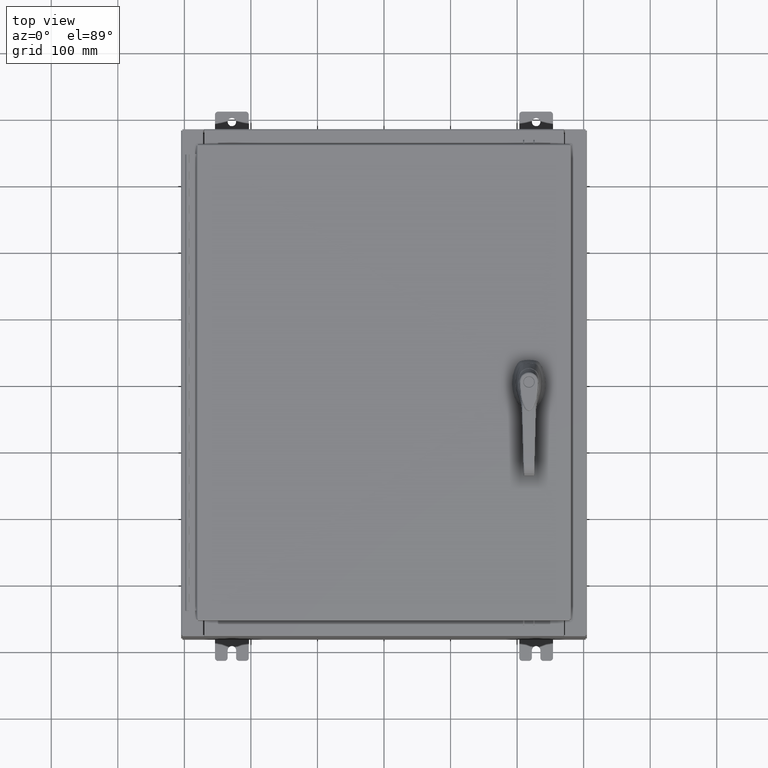
[diagram: clean part render]
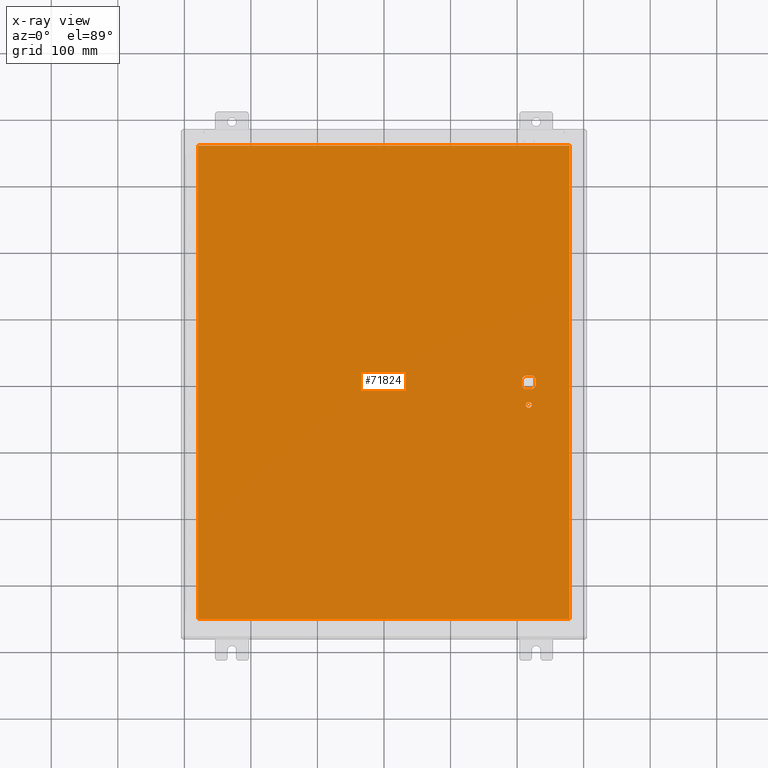
[diagram: x-ray — body ghosted, one internal face saturated and labeled with its STEP entity id]
A machine part, top view, then the same camera in x-ray: the body is ghosted and one INTERNAL B-rep face — a face not visible from any outside direction — is saturated and labeled: STEP entity #71824.
In plain terms, the highlighted planar face has unit normal (0, 0, -1).
Its self-contained STEP definition (entity closure, byte-faithful):
#723 = VERTEX_POINT ( 'NONE', #100959 ) ;
#2587 = ORIENTED_EDGE ( 'NONE', *, *, #101050, .T. ) ;
#4216 = CARTESIAN_POINT ( 'NONE',  ( 0.0000000000000000000, -0.4029999999999252000, -0.07470000000000003000 ) ) ;
#4519 = LINE ( 'NONE', #38923, #10129 ) ;
#5924 = EDGE_CURVE ( 'NONE', #16228, #10799, #52598, .T. ) ;
#6457 = DIRECTION ( 'NONE',  ( -0.0000000000000000000, -0.0000000000000000000, 1.000000000000000000 ) ) ;
#7969 = CARTESIAN_POINT ( 'NONE',  ( 10.99030000000000000, -14.00629999999999800, -0.07470000000000000300 ) ) ;
#10129 = VECTOR ( 'NONE', #102152, 39.37007874015748100 ) ;
#10799 = VERTEX_POINT ( 'NONE', #38162 ) ;
#11919 = EDGE_CURVE ( 'NONE', #31676, #81058, #90666, .T. ) ;
#12969 = CARTESIAN_POINT ( 'NONE',  ( -10.99030000000000000, 14.00630000000000100, -0.07470000000000019700 ) ) ;
#13667 = LINE ( 'NONE', #65202, #61791 ) ;
#16228 = VERTEX_POINT ( 'NONE', #105351 ) ;
#17698 = DIRECTION ( 'NONE',  ( -0.0000000000000000000, -0.0000000000000000000, 1.000000000000000000 ) ) ;
#18111 = LINE ( 'NONE', #45543, #111513 ) ;
#19831 = ORIENTED_EDGE ( 'NONE', *, *, #54070, .F. ) ;
#22027 = VECTOR ( 'NONE', #86319, 39.37007874015748100 ) ;
#22098 = ORIENTED_EDGE ( 'NONE', *, *, #5924, .F. ) ;
#22574 = ORIENTED_EDGE ( 'NONE', *, *, #36557, .F. ) ;
#23165 = CARTESIAN_POINT ( 'NONE',  ( 8.980999999999925300, 0.2002273707563080300, -0.07470000000000003000 ) ) ;
#23982 = VERTEX_POINT ( 'NONE', #53051 ) ;
#26213 = AXIS2_PLACEMENT_3D ( 'NONE', #93775, #39615, #102842 ) ;
#26748 = VECTOR ( 'NONE', #103163, 39.37007874015748100 ) ;
#26751 = ORIENTED_EDGE ( 'NONE', *, *, #45529, .T. ) ;
#29593 = LINE ( 'NONE', #12969, #26748 ) ;
#31578 = EDGE_CURVE ( 'NONE', #66918, #51795, #67882, .T. ) ;
#31676 = VERTEX_POINT ( 'NONE', #91230 ) ;
#32430 = VERTEX_POINT ( 'NONE', #68137 ) ;
#32729 = PLANE ( 'NONE',  #100326 ) ;
#32805 = CIRCLE ( 'NONE', #43745, 0.4499999999999156900 ) ;
#36319 = AXIS2_PLACEMENT_3D ( 'NONE', #60678, #6457, #69753 ) ;
#36557 = EDGE_CURVE ( 'NONE', #101112, #81058, #13667, .T. ) ;
#37115 = DIRECTION ( 'NONE',  ( 0.0000000000000000000, 1.000000000000000000, 0.0000000000000000000 ) ) ;
#37184 = CIRCLE ( 'NONE', #26213, 0.4499999999999156900 ) ;
#38162 = CARTESIAN_POINT ( 'NONE',  ( -10.99030000000000000, 14.00629999999999800, -0.07470000000000000300 ) ) ;
#38923 = CARTESIAN_POINT ( 'NONE',  ( 0.0000000000000000000, 0.4029999999999252000, -0.07470000000000003000 ) ) ;
#39035 = VERTEX_POINT ( 'NONE', #51809 ) ;
#39615 = DIRECTION ( 'NONE',  ( -0.0000000000000000000, -0.0000000000000000000, 1.000000000000000000 ) ) ;
#40770 = ORIENTED_EDGE ( 'NONE', *, *, #11919, .T. ) ;
#41645 = CARTESIAN_POINT ( 'NONE',  ( 8.175000000000073500, 0.0000000000000000000, -0.07470000000000003000 ) ) ;
#41820 = DIRECTION ( 'NONE',  ( -1.000000000000000000, 0.0000000000000000000, -0.0000000000000000000 ) ) ;
#43745 = AXIS2_PLACEMENT_3D ( 'NONE', #105682, #51517, #114785 ) ;
#45432 = CARTESIAN_POINT ( 'NONE',  ( 8.577999999999999400, -1.338000000000000100, -0.07470000000000003000 ) ) ;
#45529 = EDGE_CURVE ( 'NONE', #51795, #66918, #115815, .T. ) ;
#45543 = CARTESIAN_POINT ( 'NONE',  ( -10.99029999999999600, -14.00629999999999800, -0.07470000000000019700 ) ) ;
#47055 = AXIS2_PLACEMENT_3D ( 'NONE', #45432, #108670, #54508 ) ;
#48932 = DIRECTION ( 'NONE',  ( 1.000000000000000000, 0.0000000000000000000, 0.0000000000000000000 ) ) ;
#50610 = ORIENTED_EDGE ( 'NONE', *, *, #96383, .T. ) ;
#51517 = DIRECTION ( 'NONE',  ( -0.0000000000000000000, -0.0000000000000000000, 1.000000000000000000 ) ) ;
#51795 = VERTEX_POINT ( 'NONE', #52363 ) ;
#51809 = CARTESIAN_POINT ( 'NONE',  ( 8.175000000000073500, -0.2002273707563079800, -0.07470000000000003000 ) ) ;
#52363 = CARTESIAN_POINT ( 'NONE',  ( 8.749500000000001200, -1.338000000000000100, -0.07470000000000003000 ) ) ;
#52598 = LINE ( 'NONE', #112542, #73806 ) ;
#53051 = CARTESIAN_POINT ( 'NONE',  ( 8.377772629243690300, 0.4029999999999252000, -0.07470000000000003000 ) ) ;
#53170 = CARTESIAN_POINT ( 'NONE',  ( 8.577999999999999400, 0.0000000000000000000, -0.07470000000000003000 ) ) ;
#53228 = FACE_BOUND ( 'NONE', #67549, .T. ) ;
#54070 = EDGE_CURVE ( 'NONE', #70169, #16228, #70452, .T. ) ;
#54508 = DIRECTION ( 'NONE',  ( -1.000000000000000000, 0.0000000000000000000, 0.0000000000000000000 ) ) ;
#54622 = DIRECTION ( 'NONE',  ( 1.000000000000000000, -0.0000000000000000000, -0.0000000000000000000 ) ) ;
#56686 = EDGE_CURVE ( 'NONE', #101112, #96160, #102673, .T. ) ;
#58407 = DIRECTION ( 'NONE',  ( -1.000000000000000000, -0.0000000000000000000, -0.0000000000000000000 ) ) ;
#60678 = CARTESIAN_POINT ( 'NONE',  ( 8.577999999999999400, 0.0000000000000000000, -0.07470000000000003000 ) ) ;
#61791 = VECTOR ( 'NONE', #65075, 39.37007874015748100 ) ;
#61872 = ORIENTED_EDGE ( 'NONE', *, *, #88632, .T. ) ;
#62262 = DIRECTION ( 'NONE',  ( -1.000000000000000000, 1.776356839400251300E-015, 0.0000000000000000000 ) ) ;
#65075 = DIRECTION ( 'NONE',  ( 2.728745808672812900E-015, -1.000000000000000000, 0.0000000000000000000 ) ) ;
#65202 = CARTESIAN_POINT ( 'NONE',  ( 8.980999999999925300, 2.450686610769032800E-014, -0.07470000000000003000 ) ) ;
#66580 = EDGE_CURVE ( 'NONE', #90824, #70169, #18111, .T. ) ;
#66918 = VERTEX_POINT ( 'NONE', #85428 ) ;
#67549 = EDGE_LOOP ( 'NONE', ( #40770, #22574, #79736, #97208, #68757, #50610, #61872, #2587 ) ) ;
#67882 = CIRCLE ( 'NONE', #110801, 0.1715000000000011500 ) ;
#68137 = CARTESIAN_POINT ( 'NONE',  ( 8.377772629243690300, -0.4029999999999250300, -0.07470000000000003000 ) ) ;
#68146 = VECTOR ( 'NONE', #48932, 39.37007874015748100 ) ;
#68757 = ORIENTED_EDGE ( 'NONE', *, *, #89958, .T. ) ;
#69369 = EDGE_LOOP ( 'NONE', ( #26751, #102654 ) ) ;
#69398 = AXIS2_PLACEMENT_3D ( 'NONE', #53170, #116433, #62262 ) ;
#69753 = DIRECTION ( 'NONE',  ( -1.000000000000000000, 0.0000000000000000000, 0.0000000000000000000 ) ) ;
#70169 = VERTEX_POINT ( 'NONE', #7969 ) ;
#70452 = LINE ( 'NONE', #82202, #115716 ) ;
#71607 = FACE_BOUND ( 'NONE', #69369, .T. ) ;
#71824 = ADVANCED_FACE ( 'NONE', ( #71607, #95691, #53228 ), #32729, .T. ) ;
#71875 = CARTESIAN_POINT ( 'NONE',  ( 8.577999999999999400, -1.338000000000000100, -0.07470000000000003000 ) ) ;
#73806 = VECTOR ( 'NONE', #58407, 39.37007874015748100 ) ;
#74092 = CARTESIAN_POINT ( 'NONE',  ( 8.778227370756310300, 0.4029999999999250300, -0.07470000000000003000 ) ) ;
#76726 = EDGE_LOOP ( 'NONE', ( #19831, #83781, #78329, #22098 ) ) ;
#78329 = ORIENTED_EDGE ( 'NONE', *, *, #92732, .F. ) ;
#79736 = ORIENTED_EDGE ( 'NONE', *, *, #56686, .T. ) ;
#80969 = DIRECTION ( 'NONE',  ( -1.000000000000000000, 0.0000000000000000000, 0.0000000000000000000 ) ) ;
#81058 = VERTEX_POINT ( 'NONE', #107165 ) ;
#82202 = CARTESIAN_POINT ( 'NONE',  ( 10.99030000000000000, -14.00629999999999800, -0.07470000000000019700 ) ) ;
#83781 = ORIENTED_EDGE ( 'NONE', *, *, #66580, .F. ) ;
#84460 = CARTESIAN_POINT ( 'NONE',  ( -10.99030000000000000, -14.00629999999999600, -0.07470000000000000300 ) ) ;
#85428 = CARTESIAN_POINT ( 'NONE',  ( 8.406499999999999400, -1.338000000000000100, -0.07470000000000003000 ) ) ;
#86319 = DIRECTION ( 'NONE',  ( 0.0000000000000000000, -1.000000000000000000, 0.0000000000000000000 ) ) ;
#88632 = EDGE_CURVE ( 'NONE', #39035, #32430, #37184, .T. ) ;
#89638 = EDGE_CURVE ( 'NONE', #96160, #23982, #4519, .T. ) ;
#89958 = EDGE_CURVE ( 'NONE', #23982, #723, #32805, .T. ) ;
#90666 = CIRCLE ( 'NONE', #69398, 0.4499999999999156900 ) ;
#90824 = VERTEX_POINT ( 'NONE', #84460 ) ;
#91230 = CARTESIAN_POINT ( 'NONE',  ( 8.778227370756310300, -0.4029999999999252000, -0.07470000000000003000 ) ) ;
#92159 = LINE ( 'NONE', #4216, #68146 ) ;
#92732 = EDGE_CURVE ( 'NONE', #10799, #90824, #29593, .T. ) ;
#93775 = CARTESIAN_POINT ( 'NONE',  ( 8.577999999999999400, 0.0000000000000000000, -0.07470000000000003000 ) ) ;
#95691 = FACE_OUTER_BOUND ( 'NONE', #76726, .T. ) ;
#95989 = DIRECTION ( 'NONE',  ( 0.0000000000000000000, 0.0000000000000000000, -1.000000000000000000 ) ) ;
#96160 = VERTEX_POINT ( 'NONE', #74092 ) ;
#96383 = EDGE_CURVE ( 'NONE', #723, #39035, #115409, .T. ) ;
#97208 = ORIENTED_EDGE ( 'NONE', *, *, #89638, .T. ) ;
#100326 = AXIS2_PLACEMENT_3D ( 'NONE', #113770, #95989, #41820 ) ;
#100959 = CARTESIAN_POINT ( 'NONE',  ( 8.175000000000073500, 0.2002273707563080300, -0.07470000000000003000 ) ) ;
#101050 = EDGE_CURVE ( 'NONE', #32430, #31676, #92159, .T. ) ;
#101112 = VERTEX_POINT ( 'NONE', #23165 ) ;
#102152 = DIRECTION ( 'NONE',  ( -1.000000000000000000, 0.0000000000000000000, 0.0000000000000000000 ) ) ;
#102654 = ORIENTED_EDGE ( 'NONE', *, *, #31578, .T. ) ;
#102673 = CIRCLE ( 'NONE', #36319, 0.4499999999999156900 ) ;
#102842 = DIRECTION ( 'NONE',  ( -1.000000000000000000, 8.881784197001256300E-016, 0.0000000000000000000 ) ) ;
#103163 = DIRECTION ( 'NONE',  ( 0.0000000000000000000, -1.000000000000000000, 0.0000000000000000000 ) ) ;
#105351 = CARTESIAN_POINT ( 'NONE',  ( 10.99030000000000000, 14.00629999999999800, -0.07470000000000000300 ) ) ;
#105682 = CARTESIAN_POINT ( 'NONE',  ( 8.577999999999999400, 0.0000000000000000000, -0.07470000000000003000 ) ) ;
#107165 = CARTESIAN_POINT ( 'NONE',  ( 8.980999999999925300, -0.2002273707563075900, -0.07470000000000003000 ) ) ;
#108670 = DIRECTION ( 'NONE',  ( -0.0000000000000000000, -0.0000000000000000000, 1.000000000000000000 ) ) ;
#110801 = AXIS2_PLACEMENT_3D ( 'NONE', #71875, #17698, #80969 ) ;
#111513 = VECTOR ( 'NONE', #54622, 39.37007874015748100 ) ;
#112542 = CARTESIAN_POINT ( 'NONE',  ( 10.99030000000000000, 14.00629999999999800, -0.07470000000000019700 ) ) ;
#113770 = CARTESIAN_POINT ( 'NONE',  ( 0.0000000000000000000, 0.0000000000000000000, -0.07470000000000000300 ) ) ;
#114785 = DIRECTION ( 'NONE',  ( -1.000000000000000000, 0.0000000000000000000, 0.0000000000000000000 ) ) ;
#115409 = LINE ( 'NONE', #41645, #22027 ) ;
#115716 = VECTOR ( 'NONE', #37115, 39.37007874015748100 ) ;
#115815 = CIRCLE ( 'NONE', #47055, 0.1715000000000011500 ) ;
#116433 = DIRECTION ( 'NONE',  ( -0.0000000000000000000, -0.0000000000000000000, 1.000000000000000000 ) ) ;